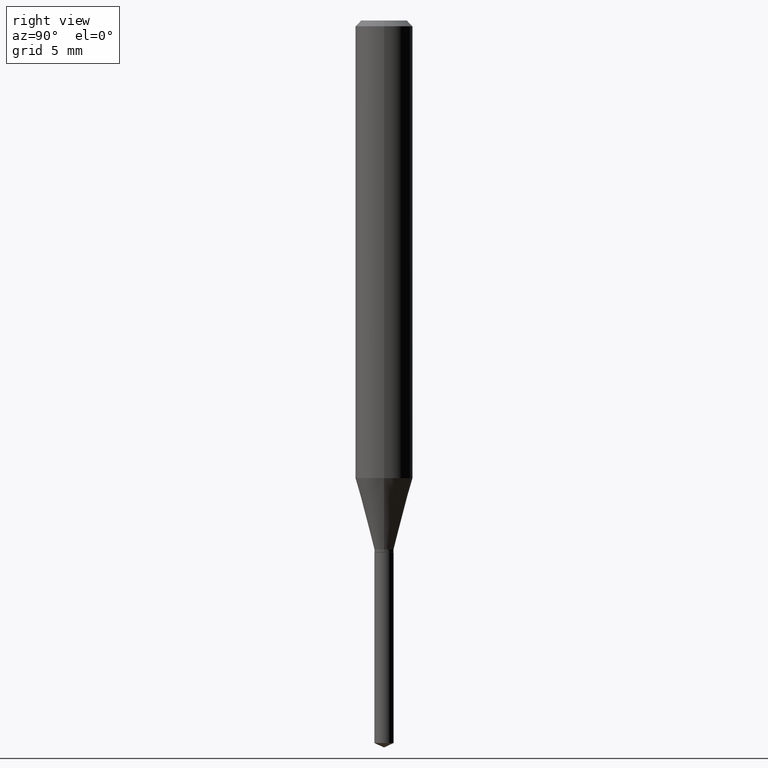
[diagram: clean part render]
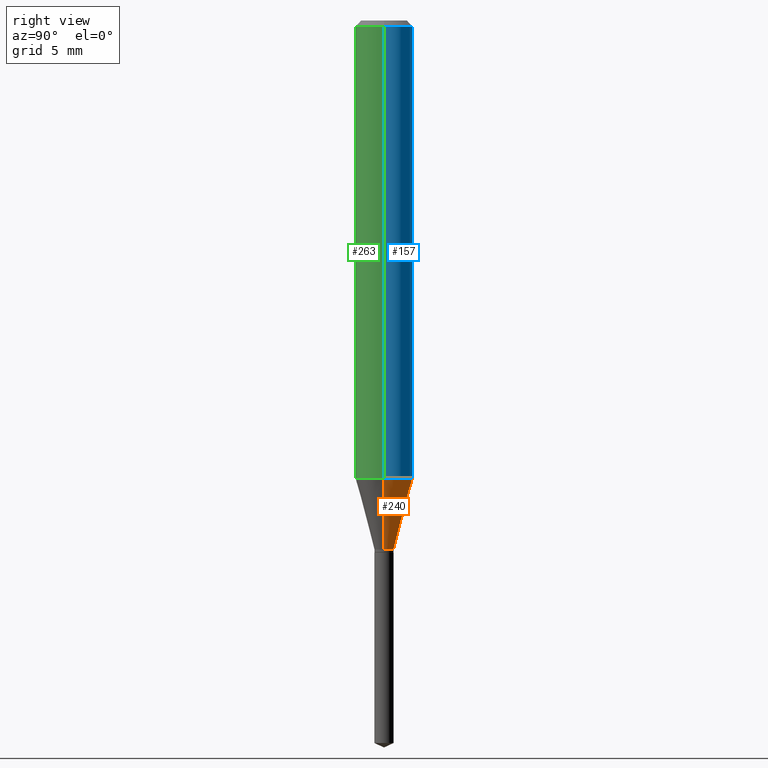
[diagram: same view with three faces highlighted in distinct colors, each labeled with its STEP entity id]
A machine part, right view with three faces highlighted in distinct colors.
Their STEP definitions:

[orange] entity #240 — the highlighted conical surface has half-angle 15 deg.
#18 = CONICAL_SURFACE ( 'NONE', #390, 0.01969999999999999876, 0.2617993877991498519 ) ;
#21 = VERTEX_POINT ( 'NONE', #295 ) ;
#26 = DIRECTION ( 'NONE',  ( 0.2588190451025211281, 1.565188264969622954E-15, 0.9659258262890679791 ) ) ;
#48 = DIRECTION ( 'NONE',  ( 1.000000000000000000, -6.982962677686254878E-15, 0.000000000000000000 ) ) ;
#51 = VECTOR ( 'NONE', #216, 39.37007874015748854 ) ;
#53 = ORIENTED_EDGE ( 'NONE', *, *, #100, .T. ) ;
#54 = EDGE_CURVE ( 'NONE', #431, #21, #60, .T. ) ;
#60 = CIRCLE ( 'NONE', #408, 0.01969999999999999876 ) ;
#77 = EDGE_CURVE ( 'NONE', #431, #375, #103, .T. ) ;
#100 = EDGE_CURVE ( 'NONE', #21, #387, #373, .T. ) ;
#102 = CARTESIAN_POINT ( 'NONE',  ( 2.662137342413139764E-29, -3.800826585464648242E-15, -1.088600000000000012 ) ) ;
#103 = LINE ( 'NONE', #337, #339 ) ;
#132 = CARTESIAN_POINT ( 'NONE',  ( -0.05905000000000010935, -2.868505420726315851E-15, -0.9417438007221644591 ) ) ;
#145 = DIRECTION ( 'NONE',  ( 1.000000000000000000, -6.982962677686254878E-15, 0.000000000000000000 ) ) ;
#170 = EDGE_LOOP ( 'NONE', ( #432, #53, #184, #238 ) ) ;
#183 = DIRECTION ( 'NONE',  ( 1.000000000000000000, -6.982962677686267499E-15, 0.000000000000000000 ) ) ;
#184 = ORIENTED_EDGE ( 'NONE', *, *, #187, .F. ) ;
#187 = EDGE_CURVE ( 'NONE', #375, #387, #197, .T. ) ;
#197 = CIRCLE ( 'NONE', #437, 0.05905000000000010935 ) ;
#210 = CARTESIAN_POINT ( 'NONE',  ( 0.05905000000000010935, -3.700424852310029476E-15, -0.9417438007221644591 ) ) ;
#216 = DIRECTION ( 'NONE',  ( -0.2588190451025211281, 5.211531920934547886E-15, 0.9659258262890679791 ) ) ;
#219 = DIRECTION ( 'NONE',  ( -2.445468806185136597E-29, 3.491481338843145583E-15, 1.000000000000000000 ) ) ;
#238 = ORIENTED_EDGE ( 'NONE', *, *, #77, .F. ) ;
#240 = ADVANCED_FACE ( 'NONE', ( #268 ), #18, .T. ) ;
#268 = FACE_OUTER_BOUND ( 'NONE', #170, .T. ) ;
#295 = CARTESIAN_POINT ( 'NONE',  ( -0.01969999999999999876, -3.670276666134784264E-15, -1.088600000000000012 ) ) ;
#315 = CARTESIAN_POINT ( 'NONE',  ( 0.01969999999999999876, -3.938390950215067457E-15, -1.088600000000000012 ) ) ;
#337 = CARTESIAN_POINT ( 'NONE',  ( 0.01969999999999999876, -3.938390950215067457E-15, -1.088600000000000012 ) ) ;
#339 = VECTOR ( 'NONE', #26, 39.37007874015748854 ) ;
#373 = LINE ( 'NONE', #481, #51 ) ;
#375 = VERTEX_POINT ( 'NONE', #210 ) ;
#387 = VERTEX_POINT ( 'NONE', #132 ) ;
#390 = AXIS2_PLACEMENT_3D ( 'NONE', #489, #449, #48 ) ;
#408 = AXIS2_PLACEMENT_3D ( 'NONE', #102, #219, #145 ) ;
#413 = DIRECTION ( 'NONE',  ( -2.445468806185136597E-29, 3.491481338843145583E-15, 1.000000000000000000 ) ) ;
#431 = VERTEX_POINT ( 'NONE', #315 ) ;
#432 = ORIENTED_EDGE ( 'NONE', *, *, #54, .T. ) ;
#437 = AXIS2_PLACEMENT_3D ( 'NONE', #447, #413, #183 ) ;
#447 = CARTESIAN_POINT ( 'NONE',  ( 2.303005088084284954E-29, -3.288080906192655344E-15, -0.9417438007221644591 ) ) ;
#449 = DIRECTION ( 'NONE',  ( -2.445468806185136597E-29, 3.491481338843145583E-15, 1.000000000000000000 ) ) ;
#481 = CARTESIAN_POINT ( 'NONE',  ( -0.01969999999999999876, -3.660849666519908145E-15, -1.088600000000000012 ) ) ;
#489 = CARTESIAN_POINT ( 'NONE',  ( 2.662137342413139764E-29, -3.800826585464648242E-15, -1.088600000000000012 ) ) ;

[blue] entity #157 — the highlighted cylindrical surface (edge-blend (fillet) strip) has radius 1.4999 mm, axis along (-0, 0, 1).
#5 = CARTESIAN_POINT ( 'NONE',  ( -0.05905000000000000526, -1.245082164935856452E-15, -0.01181000000000007738 ) ) ;
#32 = DIRECTION ( 'NONE',  ( 1.000000000000000000, -6.982962677686266711E-15, 4.876176775795935793E-29 ) ) ;
#41 = AXIS2_PLACEMENT_3D ( 'NONE', #367, #256, #32 ) ;
#69 = FACE_OUTER_BOUND ( 'NONE', #211, .T. ) ;
#99 = VECTOR ( 'NONE', #296, 39.37007874015748143 ) ;
#105 = DIRECTION ( 'NONE',  ( 1.000000000000000000, -6.982962677686267499E-15, 0.000000000000000000 ) ) ;
#118 = EDGE_CURVE ( 'NONE', #127, #311, #154, .T. ) ;
#120 = ORIENTED_EDGE ( 'NONE', *, *, #393, .F. ) ;
#127 = VERTEX_POINT ( 'NONE', #147 ) ;
#132 = CARTESIAN_POINT ( 'NONE',  ( -0.05905000000000010935, -2.868505420726315851E-15, -0.9417438007221644591 ) ) ;
#147 = CARTESIAN_POINT ( 'NONE',  ( 0.05905000000000000526, -4.535783407291119586E-16, -0.01181000000000007738 ) ) ;
#154 = CIRCLE ( 'NONE', #236, 0.05905000000000000526 ) ;
#157 = ADVANCED_FACE ( 'NONE', ( #69 ), #252, .T. ) ;
#169 = ORIENTED_EDGE ( 'NONE', *, *, #182, .T. ) ;
#182 = EDGE_CURVE ( 'NONE', #387, #311, #258, .T. ) ;
#183 = DIRECTION ( 'NONE',  ( 1.000000000000000000, -6.982962677686267499E-15, 0.000000000000000000 ) ) ;
#187 = EDGE_CURVE ( 'NONE', #375, #387, #197, .T. ) ;
#197 = CIRCLE ( 'NONE', #437, 0.05905000000000010935 ) ;
#210 = CARTESIAN_POINT ( 'NONE',  ( 0.05905000000000010935, -3.700424852310029476E-15, -0.9417438007221644591 ) ) ;
#211 = EDGE_LOOP ( 'NONE', ( #314, #169, #269, #120 ) ) ;
#236 = AXIS2_PLACEMENT_3D ( 'NONE', #248, #371, #105 ) ;
#248 = CARTESIAN_POINT ( 'NONE',  ( 2.888098660104665518E-31, -4.123439461173782112E-17, -0.01181000000000007738 ) ) ;
#252 = CYLINDRICAL_SURFACE ( 'NONE', #41, 0.05905000000000006077 ) ;
#256 = DIRECTION ( 'NONE',  ( -2.445468806185136597E-29, 3.491481338843145583E-15, 1.000000000000000000 ) ) ;
#258 = LINE ( 'NONE', #486, #99 ) ;
#269 = ORIENTED_EDGE ( 'NONE', *, *, #118, .F. ) ;
#296 = DIRECTION ( 'NONE',  ( -2.445468806185136877E-29, 3.491481338843145188E-15, 1.000000000000000000 ) ) ;
#311 = VERTEX_POINT ( 'NONE', #5 ) ;
#312 = LINE ( 'NONE', #460, #357 ) ;
#314 = ORIENTED_EDGE ( 'NONE', *, *, #187, .T. ) ;
#357 = VECTOR ( 'NONE', #462, 39.37007874015748143 ) ;
#367 = CARTESIAN_POINT ( 'NONE',  ( 0.000000000000000000, 0.000000000000000000, 0.000000000000000000 ) ) ;
#371 = DIRECTION ( 'NONE',  ( -2.445468806185136597E-29, 3.491481338843145583E-15, 1.000000000000000000 ) ) ;
#375 = VERTEX_POINT ( 'NONE', #210 ) ;
#387 = VERTEX_POINT ( 'NONE', #132 ) ;
#393 = EDGE_CURVE ( 'NONE', #375, #127, #312, .T. ) ;
#413 = DIRECTION ( 'NONE',  ( -2.445468806185136597E-29, 3.491481338843145583E-15, 1.000000000000000000 ) ) ;
#437 = AXIS2_PLACEMENT_3D ( 'NONE', #447, #413, #183 ) ;
#447 = CARTESIAN_POINT ( 'NONE',  ( 2.303005088084284954E-29, -3.288080906192655344E-15, -0.9417438007221644591 ) ) ;
#460 = CARTESIAN_POINT ( 'NONE',  ( 0.05905000000000006077, -4.123439461173744764E-16, 2.879382386107503023E-30 ) ) ;
#462 = DIRECTION ( 'NONE',  ( -2.445468806185136877E-29, 3.491481338843145188E-15, 1.000000000000000000 ) ) ;
#486 = CARTESIAN_POINT ( 'NONE',  ( -0.05905000000000006077, 4.195754854663395916E-16, -2.904631170795524694E-30 ) ) ;

[green] entity #263 — the highlighted cylindrical surface (edge-blend (fillet) strip) has radius 1.4999 mm, axis along (-0, 0, 1).
#5 = CARTESIAN_POINT ( 'NONE',  ( -0.05905000000000000526, -1.245082164935856452E-15, -0.01181000000000007738 ) ) ;
#7 = DIRECTION ( 'NONE',  ( 1.000000000000000000, -6.982962677686266711E-15, 4.876176775795935793E-29 ) ) ;
#9 = CARTESIAN_POINT ( 'NONE',  ( 0.000000000000000000, 0.000000000000000000, 0.000000000000000000 ) ) ;
#99 = VECTOR ( 'NONE', #296, 39.37007874015748143 ) ;
#109 = DIRECTION ( 'NONE',  ( 1.000000000000000000, -6.982962677686267499E-15, 0.000000000000000000 ) ) ;
#123 = CYLINDRICAL_SURFACE ( 'NONE', #276, 0.05905000000000006077 ) ;
#127 = VERTEX_POINT ( 'NONE', #147 ) ;
#130 = CARTESIAN_POINT ( 'NONE',  ( 2.303005088084284954E-29, -3.288080906192655344E-15, -0.9417438007221644591 ) ) ;
#132 = CARTESIAN_POINT ( 'NONE',  ( -0.05905000000000010935, -2.868505420726315851E-15, -0.9417438007221644591 ) ) ;
#147 = CARTESIAN_POINT ( 'NONE',  ( 0.05905000000000000526, -4.535783407291119586E-16, -0.01181000000000007738 ) ) ;
#178 = CARTESIAN_POINT ( 'NONE',  ( 2.888098660104665518E-31, -4.123439461173782112E-17, -0.01181000000000007738 ) ) ;
#182 = EDGE_CURVE ( 'NONE', #387, #311, #258, .T. ) ;
#203 = ORIENTED_EDGE ( 'NONE', *, *, #420, .T. ) ;
#210 = CARTESIAN_POINT ( 'NONE',  ( 0.05905000000000010935, -3.700424852310029476E-15, -0.9417438007221644591 ) ) ;
#226 = DIRECTION ( 'NONE',  ( -2.445468806185136597E-29, 3.491481338843145583E-15, 1.000000000000000000 ) ) ;
#231 = EDGE_LOOP ( 'NONE', ( #389, #203, #274, #344 ) ) ;
#254 = CIRCLE ( 'NONE', #430, 0.05905000000000000526 ) ;
#258 = LINE ( 'NONE', #486, #99 ) ;
#263 = ADVANCED_FACE ( 'NONE', ( #303 ), #123, .T. ) ;
#274 = ORIENTED_EDGE ( 'NONE', *, *, #393, .T. ) ;
#276 = AXIS2_PLACEMENT_3D ( 'NONE', #9, #226, #7 ) ;
#281 = DIRECTION ( 'NONE',  ( -2.445468806185136597E-29, 3.491481338843145583E-15, 1.000000000000000000 ) ) ;
#296 = DIRECTION ( 'NONE',  ( -2.445468806185136877E-29, 3.491481338843145188E-15, 1.000000000000000000 ) ) ;
#303 = FACE_OUTER_BOUND ( 'NONE', #231, .T. ) ;
#308 = CIRCLE ( 'NONE', #326, 0.05905000000000010935 ) ;
#311 = VERTEX_POINT ( 'NONE', #5 ) ;
#312 = LINE ( 'NONE', #460, #357 ) ;
#326 = AXIS2_PLACEMENT_3D ( 'NONE', #130, #281, #428 ) ;
#344 = ORIENTED_EDGE ( 'NONE', *, *, #484, .F. ) ;
#357 = VECTOR ( 'NONE', #462, 39.37007874015748143 ) ;
#375 = VERTEX_POINT ( 'NONE', #210 ) ;
#387 = VERTEX_POINT ( 'NONE', #132 ) ;
#389 = ORIENTED_EDGE ( 'NONE', *, *, #182, .F. ) ;
#393 = EDGE_CURVE ( 'NONE', #375, #127, #312, .T. ) ;
#420 = EDGE_CURVE ( 'NONE', #387, #375, #308, .T. ) ;
#428 = DIRECTION ( 'NONE',  ( 1.000000000000000000, -6.982962677686267499E-15, 0.000000000000000000 ) ) ;
#430 = AXIS2_PLACEMENT_3D ( 'NONE', #178, #482, #109 ) ;
#460 = CARTESIAN_POINT ( 'NONE',  ( 0.05905000000000006077, -4.123439461173744764E-16, 2.879382386107503023E-30 ) ) ;
#462 = DIRECTION ( 'NONE',  ( -2.445468806185136877E-29, 3.491481338843145188E-15, 1.000000000000000000 ) ) ;
#482 = DIRECTION ( 'NONE',  ( -2.445468806185136597E-29, 3.491481338843145583E-15, 1.000000000000000000 ) ) ;
#484 = EDGE_CURVE ( 'NONE', #311, #127, #254, .T. ) ;
#486 = CARTESIAN_POINT ( 'NONE',  ( -0.05905000000000006077, 4.195754854663395916E-16, -2.904631170795524694E-30 ) ) ;